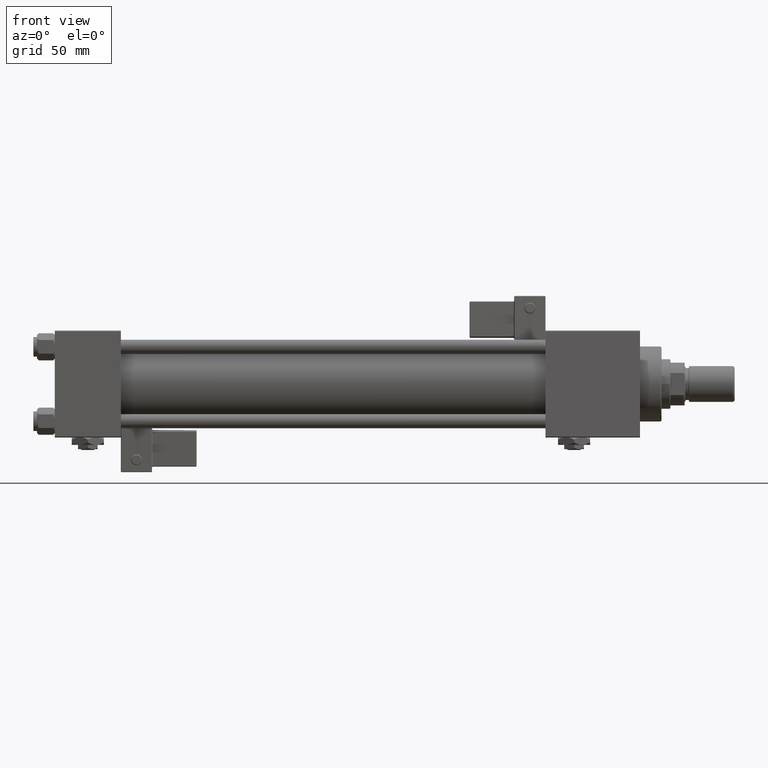
[diagram: clean part render]
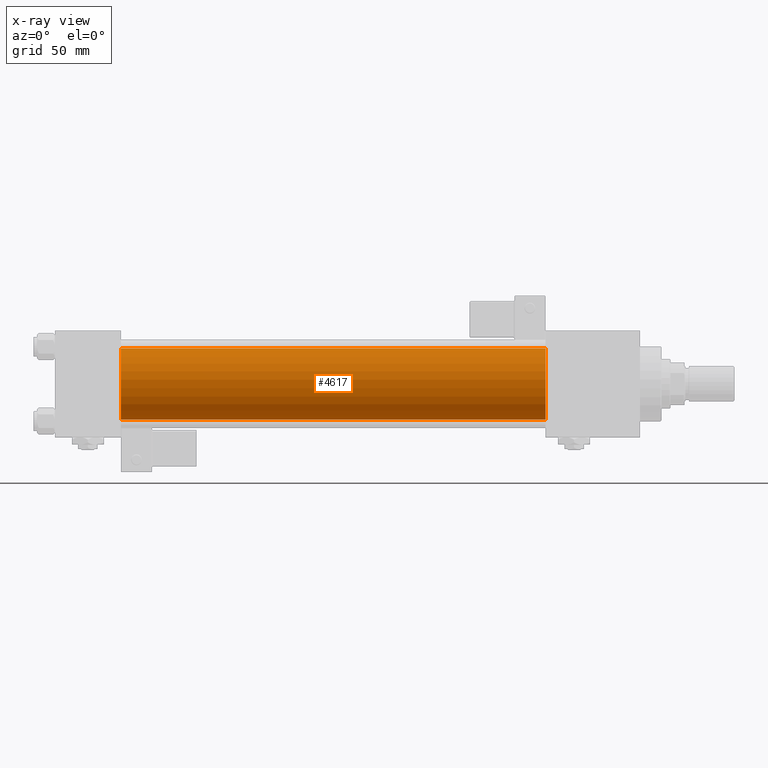
[diagram: x-ray — body ghosted, one internal face saturated and labeled with its STEP entity id]
A machine part, front view, then the same camera in x-ray: the body is ghosted and one INTERNAL B-rep face — a face not visible from any outside direction — is saturated and labeled: STEP entity #4617.
In plain terms, the highlighted cylindrical surface (edge-blend (fillet) strip) has radius 20 mm, axis along (-1, -0, -0).
Its self-contained STEP definition (entity closure, byte-faithful):
#2392 = ORIENTED_EDGE ( 'NONE', *, *, #11208, .T. ) ;
#2537 = DIRECTION ( 'NONE',  ( 0.000000000000000000, 0.000000000000000000, -1.000000000000000000 ) ) ;
#4617 = ADVANCED_FACE ( 'NONE', ( #5606 ), #25900, .F. ) ;
#4820 = VERTEX_POINT ( 'NONE', #22833 ) ;
#5606 = FACE_OUTER_BOUND ( 'NONE', #32463, .T. ) ;
#6697 = CARTESIAN_POINT ( 'NONE',  ( 274.9999999999999432, -2.602085213965210642E-15, 0.000000000000000000 ) ) ;
#6983 = DIRECTION ( 'NONE',  ( 1.000000000000000000, 0.000000000000000000, 0.000000000000000000 ) ) ;
#8701 = VERTEX_POINT ( 'NONE', #25133 ) ;
#10841 = EDGE_CURVE ( 'NONE', #8701, #12563, #53138, .T. ) ;
#11208 = EDGE_CURVE ( 'NONE', #4820, #41490, #22834, .T. ) ;
#12563 = VERTEX_POINT ( 'NONE', #14886 ) ;
#14886 = CARTESIAN_POINT ( 'NONE',  ( 37.00000000000000000, -2.602085213965210642E-15, 20.00000000000000000 ) ) ;
#15087 = CARTESIAN_POINT ( 'NONE',  ( 274.9999999999999432, -2.602085213965210642E-15, 20.00000000000000000 ) ) ;
#15324 = VECTOR ( 'NONE', #19476, 1000.000000000000000 ) ;
#15434 = AXIS2_PLACEMENT_3D ( 'NONE', #24347, #37129, #37948 ) ;
#16458 = ORIENTED_EDGE ( 'NONE', *, *, #38147, .F. ) ;
#17540 = ORIENTED_EDGE ( 'NONE', *, *, #20951, .T. ) ;
#19476 = DIRECTION ( 'NONE',  ( -1.000000000000000000, -0.000000000000000000, -0.000000000000000000 ) ) ;
#19875 = CIRCLE ( 'NONE', #15434, 20.00000000000000000 ) ;
#20619 = VECTOR ( 'NONE', #28168, 1000.000000000000000 ) ;
#20951 = EDGE_CURVE ( 'NONE', #8701, #4820, #25331, .T. ) ;
#22833 = CARTESIAN_POINT ( 'NONE',  ( 274.9999999999999432, -1.527916156705042519E-16, -20.00000000000000000 ) ) ;
#22834 = LINE ( 'NONE', #40027, #15324 ) ;
#24347 = CARTESIAN_POINT ( 'NONE',  ( 37.00000000000000000, -2.602085213965210642E-15, 0.000000000000000000 ) ) ;
#25133 = CARTESIAN_POINT ( 'NONE',  ( 274.9999999999999432, -2.602085213965210642E-15, 20.00000000000000000 ) ) ;
#25331 = CIRCLE ( 'NONE', #34161, 20.00000000000000000 ) ;
#25900 = CYLINDRICAL_SURFACE ( 'NONE', #42269, 20.00000000000000000 ) ;
#28168 = DIRECTION ( 'NONE',  ( -1.000000000000000000, -0.000000000000000000, -0.000000000000000000 ) ) ;
#30082 = DIRECTION ( 'NONE',  ( -1.000000000000000000, -0.000000000000000000, -0.000000000000000000 ) ) ;
#32463 = EDGE_LOOP ( 'NONE', ( #17540, #2392, #16458, #44155 ) ) ;
#34161 = AXIS2_PLACEMENT_3D ( 'NONE', #6697, #6983, #2537 ) ;
#37129 = DIRECTION ( 'NONE',  ( 1.000000000000000000, 0.000000000000000000, 0.000000000000000000 ) ) ;
#37728 = CARTESIAN_POINT ( 'NONE',  ( 37.00000000000000000, -1.527916156705042519E-16, -20.00000000000000000 ) ) ;
#37948 = DIRECTION ( 'NONE',  ( 0.000000000000000000, 0.000000000000000000, -1.000000000000000000 ) ) ;
#38147 = EDGE_CURVE ( 'NONE', #12563, #41490, #19875, .T. ) ;
#40027 = CARTESIAN_POINT ( 'NONE',  ( 274.9999999999999432, -1.527916156705042519E-16, -20.00000000000000000 ) ) ;
#41490 = VERTEX_POINT ( 'NONE', #37728 ) ;
#42269 = AXIS2_PLACEMENT_3D ( 'NONE', #42829, #30082, #51431 ) ;
#42829 = CARTESIAN_POINT ( 'NONE',  ( 274.9999999999999432, -2.602085213965210642E-15, 0.000000000000000000 ) ) ;
#44155 = ORIENTED_EDGE ( 'NONE', *, *, #10841, .F. ) ;
#51431 = DIRECTION ( 'NONE',  ( 0.000000000000000000, 0.000000000000000000, 1.000000000000000000 ) ) ;
#53138 = LINE ( 'NONE', #15087, #20619 ) ;